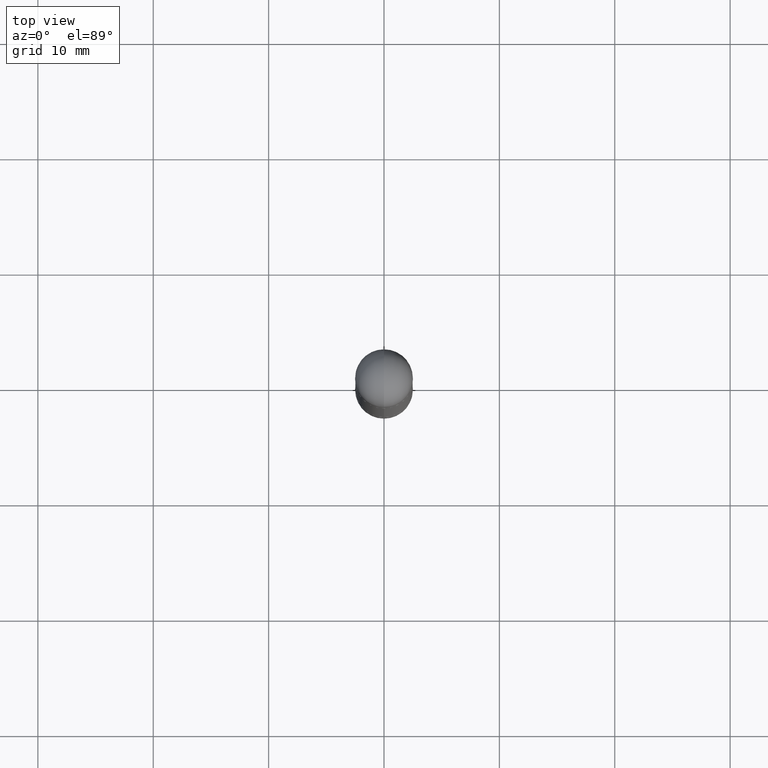
[diagram: clean part render]
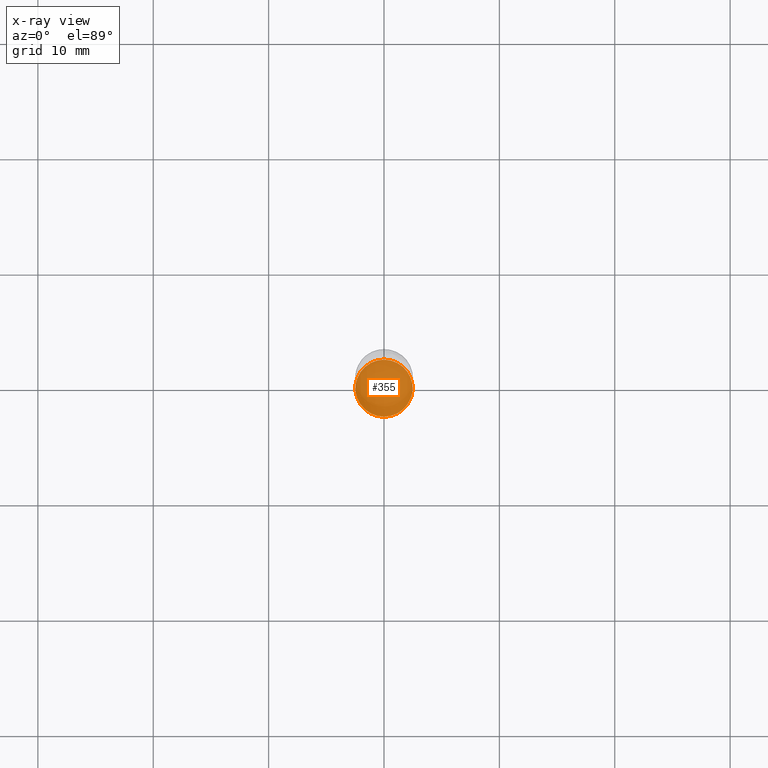
[diagram: x-ray — body ghosted, one internal face saturated and labeled with its STEP entity id]
A machine part, top view, then the same camera in x-ray: the body is ghosted and one INTERNAL B-rep face — a face not visible from any outside direction — is saturated and labeled: STEP entity #355.
In plain terms, the highlighted planar face has unit normal (-0, 0, 1).
Its self-contained STEP definition (entity closure, byte-faithful):
#10 = PLANE ( 'NONE',  #322 ) ;
#11 = ORIENTED_EDGE ( 'NONE', *, *, #26, .F. ) ;
#24 = CARTESIAN_POINT ( 'NONE',  ( -6.804897129404755657E-16, -0.09745000000000728080, -2.086600000000000232 ) ) ;
#26 = EDGE_CURVE ( 'NONE', #477, #697, #283, .T. ) ;
#45 = CARTESIAN_POINT ( 'NONE',  ( 6.959766096770698684E-16, 0.09744999999999269524, -2.086600000000000676 ) ) ;
#196 = DIRECTION ( 'NONE',  ( -6.982962677686265922E-15, -1.000000000000000000, 3.491264531461236468E-15 ) ) ;
#224 = AXIS2_PLACEMENT_3D ( 'NONE', #512, #590, #282 ) ;
#282 = DIRECTION ( 'NONE',  ( -6.982962677686266711E-15, -1.000000000000000000, 2.803332984776052637E-15 ) ) ;
#283 = CIRCLE ( 'NONE', #533, 0.09744999999999999496 ) ;
#315 = CARTESIAN_POINT ( 'NONE',  ( 5.103031113432164627E-29, -7.284872571347017777E-15, -2.086600000000000232 ) ) ;
#322 = AXIS2_PLACEMENT_3D ( 'NONE', #315, #752, #196 ) ;
#355 = ADVANCED_FACE ( 'NONE', ( #764 ), #10, .F. ) ;
#473 = DIRECTION ( 'NONE',  ( -2.445620201970747943E-29, 3.491264531461236863E-15, 1.000000000000000000 ) ) ;
#477 = VERTEX_POINT ( 'NONE', #24 ) ;
#486 = EDGE_CURVE ( 'NONE', #697, #477, #599, .T. ) ;
#512 = CARTESIAN_POINT ( 'NONE',  ( 5.103031113432164627E-29, -7.284872571347017777E-15, -2.086600000000000232 ) ) ;
#533 = AXIS2_PLACEMENT_3D ( 'NONE', #786, #473, #726 ) ;
#590 = DIRECTION ( 'NONE',  ( -2.445620201970747943E-29, 3.491264531461236863E-15, 1.000000000000000000 ) ) ;
#599 = CIRCLE ( 'NONE', #224, 0.09744999999999999496 ) ;
#658 = ORIENTED_EDGE ( 'NONE', *, *, #486, .F. ) ;
#697 = VERTEX_POINT ( 'NONE', #45 ) ;
#726 = DIRECTION ( 'NONE',  ( -6.982962677686266711E-15, -1.000000000000000000, 2.803332984776052637E-15 ) ) ;
#752 = DIRECTION ( 'NONE',  ( -2.445620201970748223E-29, 3.491264531461236468E-15, 1.000000000000000000 ) ) ;
#764 = FACE_OUTER_BOUND ( 'NONE', #809, .T. ) ;
#786 = CARTESIAN_POINT ( 'NONE',  ( 5.103031113432164627E-29, -7.284872571347017777E-15, -2.086600000000000232 ) ) ;
#809 = EDGE_LOOP ( 'NONE', ( #11, #658 ) ) ;